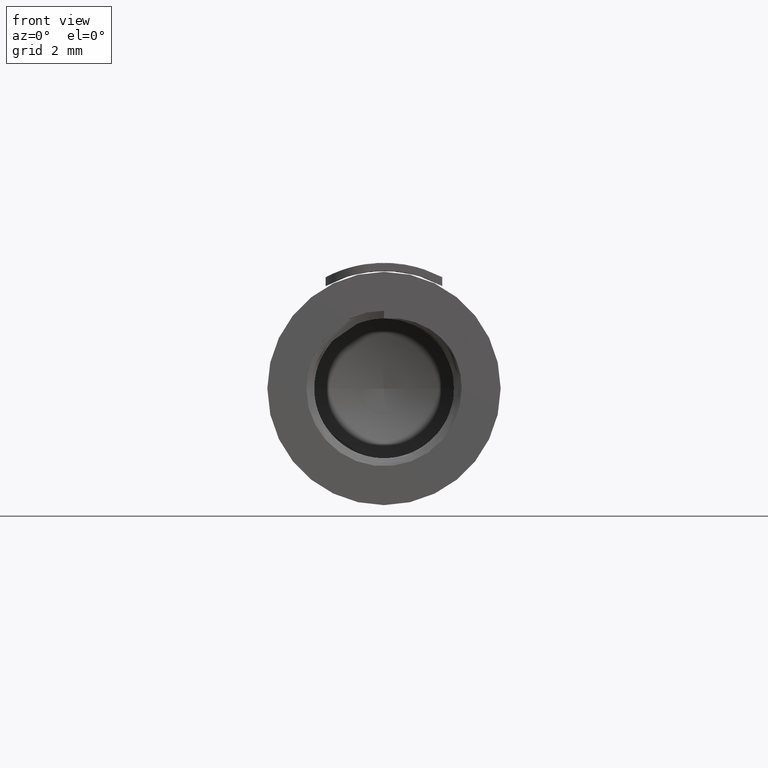
[diagram: clean part render]
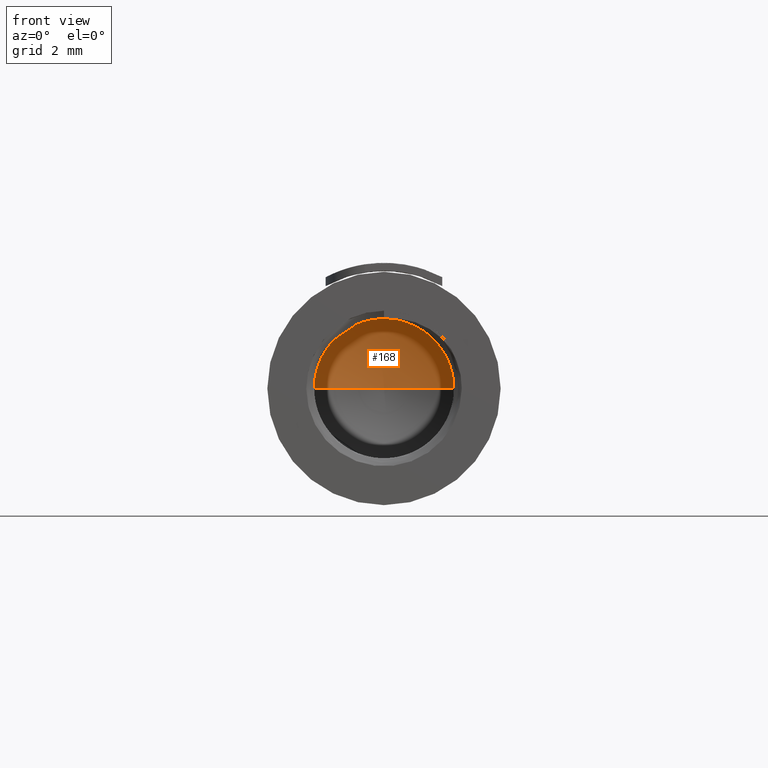
[diagram: same view with one face highlighted and labeled with its STEP entity id]
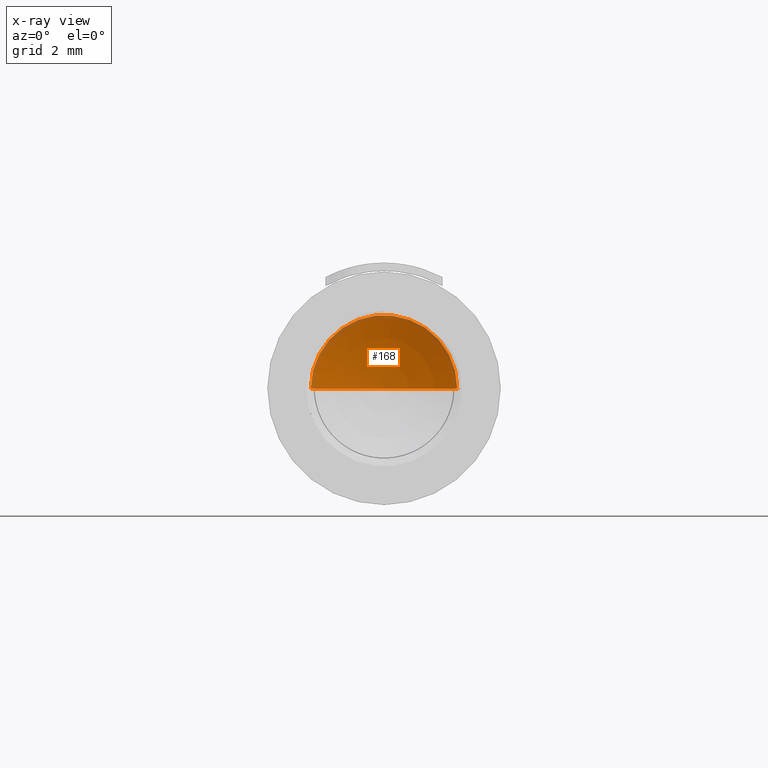
[diagram: x-ray of the same camera — body ghosted, the highlighted face saturated]
A machine part, front view. The second image highlights one B-rep face of the part: STEP entity #168.
The next image is the same camera in x-ray: the body ghosted, the highlighted face saturated — about 9% of this face is hidden behind the body in this view.
In plain terms, the highlighted toroidal blend (fillet) surface has major radius 0.1866 mm and minor (blend) radius 5 mm.
Its self-contained STEP definition (entity closure, byte-faithful):
#168=ADVANCED_FACE('',(#612),#613,.F.);
#612=FACE_OUTER_BOUND('',#1418,.T.);
#613=TOROIDAL_SURFACE('',#1419,-0.186628937492307,5.0);
#1418=EDGE_LOOP('',(#5867,#5868,#5869));
#1419=AXIS2_PLACEMENT_3D('',#5870,#5871,#5872);
#5867=ORIENTED_EDGE('',*,*,#9267,.F.);
#5868=ORIENTED_EDGE('',*,*,#9268,.F.);
#5869=ORIENTED_EDGE('',*,*,#9266,.T.);
#5870=CARTESIAN_POINT('',(0.0,10.5034842500308,0.0));
#5871=DIRECTION('',(0.0,-1.0,0.0));
#5872=DIRECTION('',(1.0,0.0,-6.12323399573677E-17));
#9266=EDGE_CURVE('',#10962,#10970,#10972,.T.);
#9267=EDGE_CURVE('',#10973,#10970,#10974,.T.);
#9268=EDGE_CURVE('',#10962,#10973,#10975,.T.);
#10962=VERTEX_POINT('',#13859);
#10970=VERTEX_POINT('',#13890);
#10972=CIRCLE('',#13892,1.88277620572885);
#10973=VERTEX_POINT('',#13893);
#10974=CIRCLE('',#13894,5.0);
#10975=CIRCLE('',#13895,5.0);
#13859=CARTESIAN_POINT('',(1.88277620572885,15.0551391527239,-1.15286792692832E-16));
#13890=CARTESIAN_POINT('',(-1.88277620572885,15.0551391527239,3.45860378078495E-16));
#13892=AXIS2_PLACEMENT_3D('',#20381,#20382,#20383);
#13893=CARTESIAN_POINT('',(7.96658832097787E-32,15.5,1.3010426069826E-15));
#13894=AXIS2_PLACEMENT_3D('',#20384,#20385,#20386);
#13895=AXIS2_PLACEMENT_3D('',#20387,#20388,#20389);
#20381=CARTESIAN_POINT('',(0.0,15.0551391527239,0.0));
#20382=DIRECTION('',(0.0,-1.0,0.0));
#20383=DIRECTION('',(1.0,0.0,-6.12323399573677E-17));
#20384=CARTESIAN_POINT('',(0.186628937492307,10.5034842500308,-3.42831796392338E-17));
#20385=DIRECTION('',(1.83697019872103E-16,0.0,1.0));
#20386=DIRECTION('',(-1.0,0.0,1.83697019872103E-16));
#20387=CARTESIAN_POINT('',(-0.186628937492307,10.5034842500308,3.42831796392338E-17));
#20388=DIRECTION('',(1.83697019872103E-16,0.0,1.0));
#20389=DIRECTION('',(1.0,-0.0,-1.83697019872103E-16));